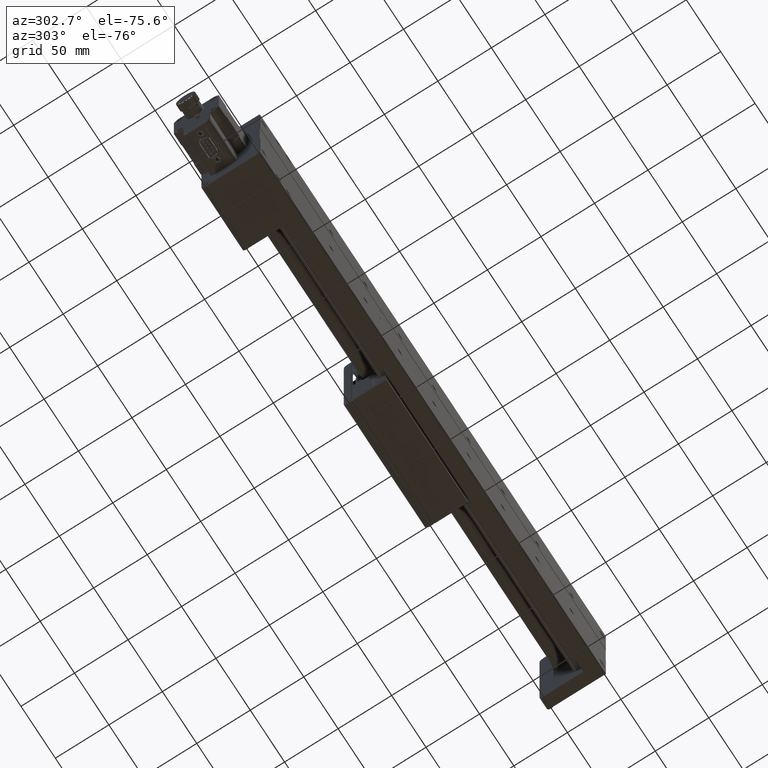
[diagram: clean part render]
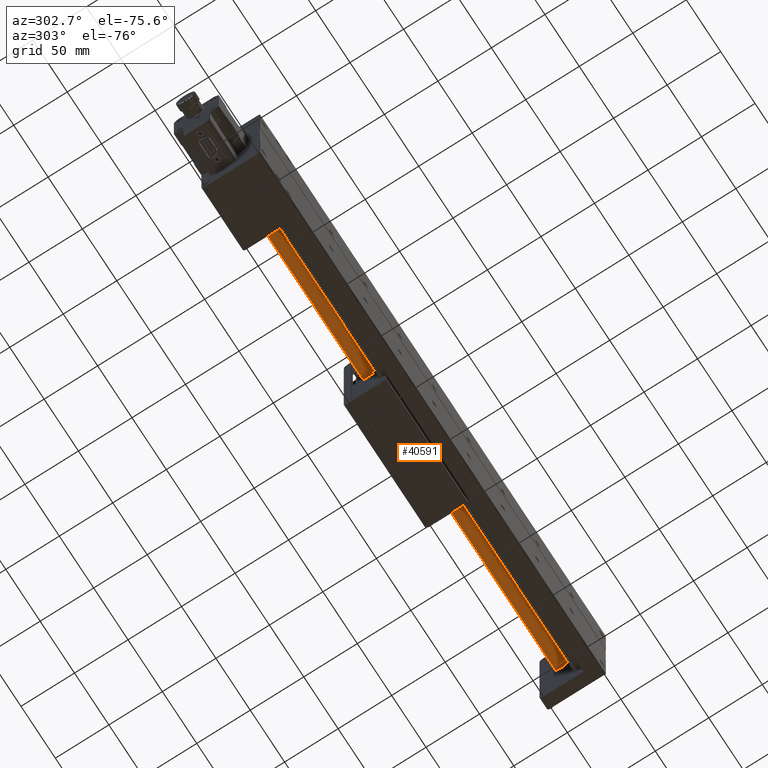
[diagram: same view with one face highlighted and labeled with its STEP entity id]
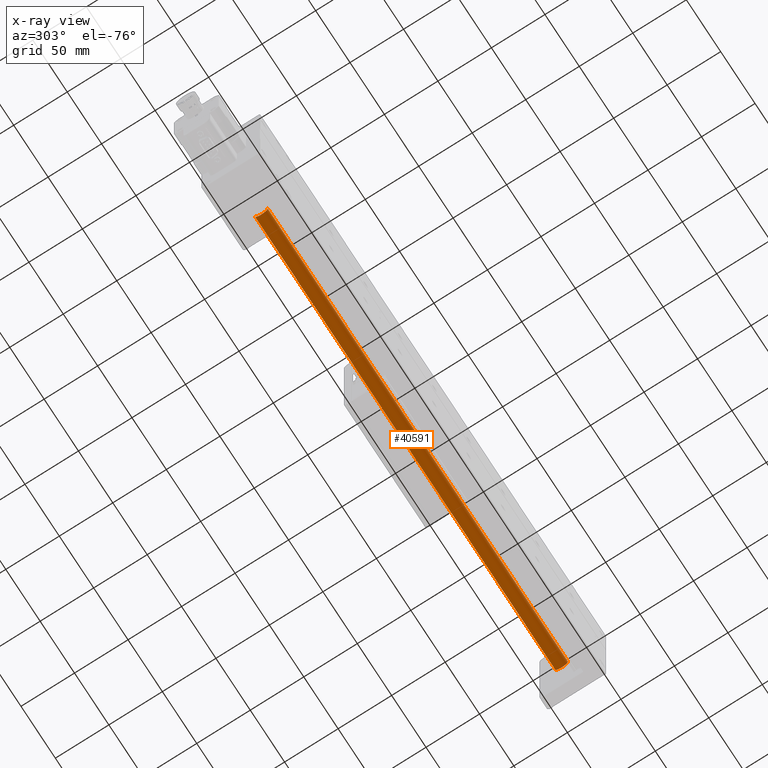
[diagram: x-ray of the same camera — body ghosted, the highlighted face saturated]
A machine part, auxiliary view. The second image highlights one B-rep face of the part: STEP entity #40591.
The next image is the same camera in x-ray: the body ghosted, the highlighted face saturated — about 0% of this face is hidden behind the body in this view.
In plain terms, the highlighted cylindrical surface (edge-blend (fillet) strip) has radius 6 mm, axis along (-1, -0, 0).
Its self-contained STEP definition (entity closure, byte-faithful):
#1476 = DIRECTION ( 'NONE',  ( 1.000000000000000000, 8.117692259539895300E-017, -1.099921598156732000E-014 ) ) ;
#1676 = CARTESIAN_POINT ( 'NONE',  ( 166.6464453227606300, 27.99999999999417700, 143.1675170193732400 ) ) ;
#4106 = LINE ( 'NONE', #20942, #36333 ) ;
#5007 = DIRECTION ( 'NONE',  ( 0.0000000000000000000, -1.000000000000000000, 0.0000000000000000000 ) ) ;
#5345 = DIRECTION ( 'NONE',  ( -1.000000000000000000, -8.117692259539895300E-017, 1.099921598156732000E-014 ) ) ;
#5477 = AXIS2_PLACEMENT_3D ( 'NONE', #35798, #1476, #22640 ) ;
#7683 = EDGE_CURVE ( 'NONE', #45915, #31052, #36290, .T. ) ;
#8042 = DIRECTION ( 'NONE',  ( 0.0000000000000000000, -1.000000000000000000, 0.0000000000000000000 ) ) ;
#9735 = CARTESIAN_POINT ( 'NONE',  ( -270.3535546772394000, 39.99999999999414500, 143.1675170193756200 ) ) ;
#10726 = VECTOR ( 'NONE', #5345, 1000.000000000000000 ) ;
#11802 = ORIENTED_EDGE ( 'NONE', *, *, #25442, .F. ) ;
#12410 = EDGE_CURVE ( 'NONE', #45915, #38515, #39579, .T. ) ;
#13969 = ORIENTED_EDGE ( 'NONE', *, *, #12410, .F. ) ;
#18298 = CARTESIAN_POINT ( 'NONE',  ( 166.6464453227606300, 39.99999999999418100, 143.1675170193756200 ) ) ;
#18372 = CARTESIAN_POINT ( 'NONE',  ( 166.6464453227606300, 27.99999999999417700, 143.1675170193756200 ) ) ;
#20942 = CARTESIAN_POINT ( 'NONE',  ( 166.6464453227606300, 39.99999999999418100, 143.1675170193732400 ) ) ;
#21493 = DIRECTION ( 'NONE',  ( -1.000000000000000000, -8.117692259539895300E-017, 1.099921598156732000E-014 ) ) ;
#22640 = DIRECTION ( 'NONE',  ( 0.0000000000000000000, 1.000000000000000000, 0.0000000000000000000 ) ) ;
#22734 = AXIS2_PLACEMENT_3D ( 'NONE', #45574, #25461, #8042 ) ;
#23006 = ORIENTED_EDGE ( 'NONE', *, *, #27212, .F. ) ;
#25442 = EDGE_CURVE ( 'NONE', #53208, #31052, #27319, .T. ) ;
#25461 = DIRECTION ( 'NONE',  ( -1.000000000000000000, -8.117692259539895300E-017, 1.099921598156732000E-014 ) ) ;
#27212 = EDGE_CURVE ( 'NONE', #38515, #53208, #4106, .T. ) ;
#27319 = CIRCLE ( 'NONE', #22734, 6.000000000000001800 ) ;
#28278 = CARTESIAN_POINT ( 'NONE',  ( -270.3535546772394000, 27.99999999999414500, 143.1675170193780700 ) ) ;
#30791 = CYLINDRICAL_SURFACE ( 'NONE', #47784, 6.000000000000001800 ) ;
#31052 = VERTEX_POINT ( 'NONE', #28278 ) ;
#35798 = CARTESIAN_POINT ( 'NONE',  ( 166.6464453227606300, 33.99999999999418100, 143.1675170193732400 ) ) ;
#36290 = LINE ( 'NONE', #1676, #10726 ) ;
#36333 = VECTOR ( 'NONE', #21493, 1000.000000000000000 ) ;
#38515 = VERTEX_POINT ( 'NONE', #18298 ) ;
#39579 = CIRCLE ( 'NONE', #5477, 5.999999999999998200 ) ;
#40591 = ADVANCED_FACE ( 'NONE', ( #54358 ), #30791, .T. ) ;
#45264 = EDGE_LOOP ( 'NONE', ( #23006, #13969, #51305, #11802 ) ) ;
#45574 = CARTESIAN_POINT ( 'NONE',  ( -270.3535546772394000, 33.99999999999414500, 143.1675170193780700 ) ) ;
#45915 = VERTEX_POINT ( 'NONE', #18372 ) ;
#47784 = AXIS2_PLACEMENT_3D ( 'NONE', #50454, #50637, #5007 ) ;
#50454 = CARTESIAN_POINT ( 'NONE',  ( 166.6464453227606300, 33.99999999999418100, 143.1675170193732400 ) ) ;
#50637 = DIRECTION ( 'NONE',  ( -1.000000000000000000, -8.117692259539895300E-017, 1.099921598156732000E-014 ) ) ;
#51305 = ORIENTED_EDGE ( 'NONE', *, *, #7683, .T. ) ;
#53208 = VERTEX_POINT ( 'NONE', #9735 ) ;
#54358 = FACE_OUTER_BOUND ( 'NONE', #45264, .T. ) ;